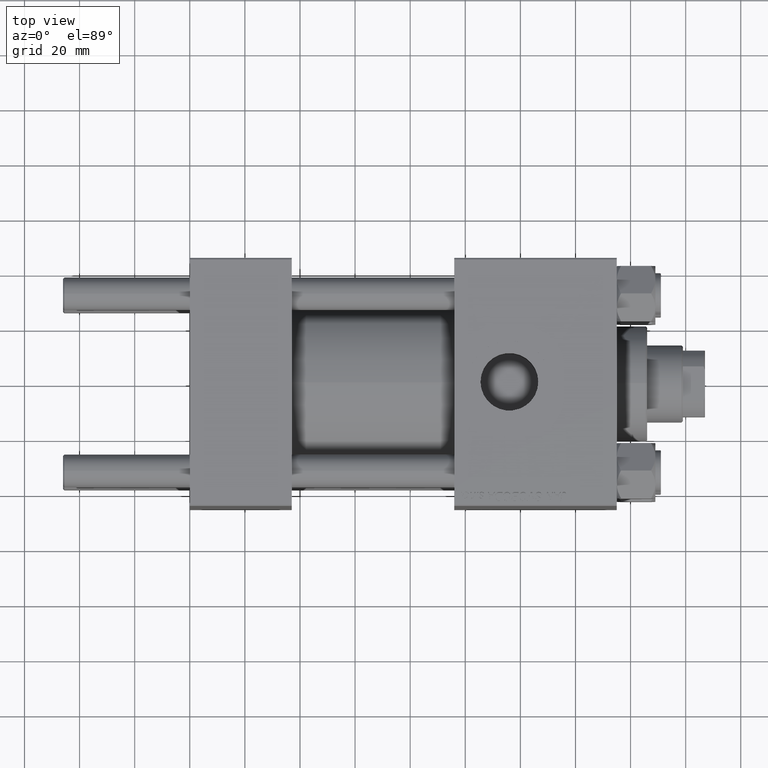
[diagram: clean part render]
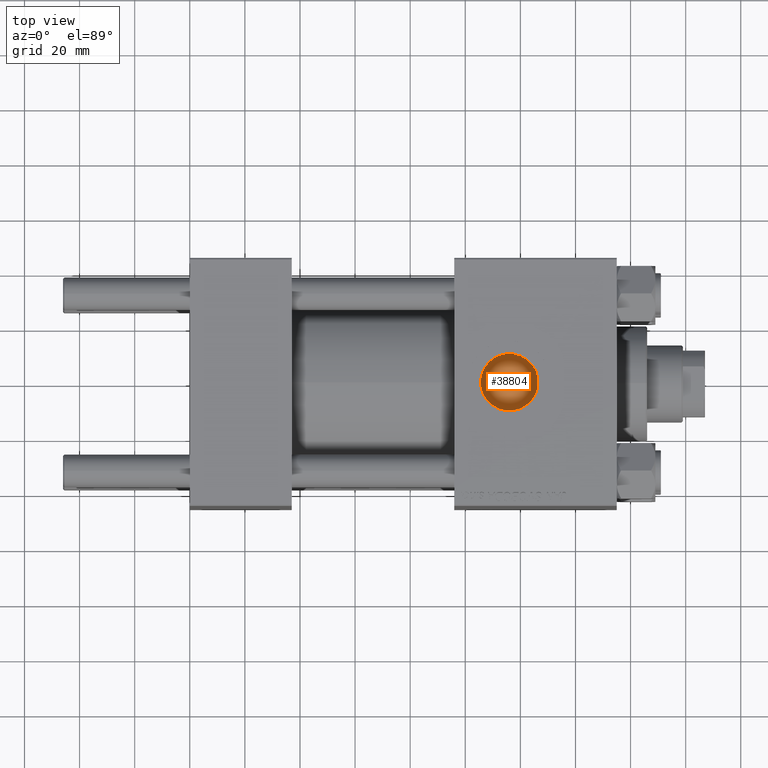
[diagram: same view with one face highlighted and labeled with its STEP entity id]
A machine part, top view. The second image highlights one B-rep face of the part: STEP entity #38804.
In plain terms, the highlighted planar face has unit normal (0, 0, 1).
Its self-contained STEP definition (entity closure, byte-faithful):
#86 = AXIS2_PLACEMENT_3D ( 'NONE', #4566, #15161, #26508 ) ;
#764 = CARTESIAN_POINT ( 'NONE',  ( 126.2999999999999972, 0.000000000000000000, 28.59999999999998721 ) ) ;
#1245 = ORIENTED_EDGE ( 'NONE', *, *, #29041, .F. ) ;
#2803 = CIRCLE ( 'NONE', #47059, 10.48000000000000398 ) ;
#4566 = CARTESIAN_POINT ( 'NONE',  ( 116.0000000000000000, -6.938893903907227589E-15, 28.59999999999998721 ) ) ;
#8361 = CARTESIAN_POINT ( 'NONE',  ( 126.2999999999999972, 1.934011375354389939, 28.59999999999998721 ) ) ;
#8387 = DIRECTION ( 'NONE',  ( 0.000000000000000000, 0.000000000000000000, 1.000000000000000000 ) ) ;
#10971 = DIRECTION ( 'NONE',  ( 0.000000000000000000, 0.000000000000000000, 1.000000000000000000 ) ) ;
#11373 = EDGE_CURVE ( 'NONE', #30995, #32601, #12941, .T. ) ;
#12941 = CIRCLE ( 'NONE', #86, 10.48000000000000398 ) ;
#15161 = DIRECTION ( 'NONE',  ( 0.000000000000000000, 0.000000000000000000, 1.000000000000000000 ) ) ;
#15295 = EDGE_CURVE ( 'NONE', #32601, #38131, #2803, .T. ) ;
#18992 = DIRECTION ( 'NONE',  ( 1.000000000000000000, 0.000000000000000000, 0.000000000000000000 ) ) ;
#19426 = ORIENTED_EDGE ( 'NONE', *, *, #11373, .T. ) ;
#20798 = VECTOR ( 'NONE', #38550, 1000.000000000000000 ) ;
#22306 = PLANE ( 'NONE',  #47579 ) ;
#26508 = DIRECTION ( 'NONE',  ( 1.000000000000000000, 0.000000000000000000, 0.000000000000000000 ) ) ;
#27080 = CARTESIAN_POINT ( 'NONE',  ( 116.0000000000000000, -6.938893903907227589E-15, 28.59999999999998721 ) ) ;
#29041 = EDGE_CURVE ( 'NONE', #30995, #38131, #42328, .T. ) ;
#30591 = CARTESIAN_POINT ( 'NONE',  ( 116.0000000000000000, -6.938893903907227589E-15, 28.59999999999998721 ) ) ;
#30619 = FACE_OUTER_BOUND ( 'NONE', #42338, .T. ) ;
#30995 = VERTEX_POINT ( 'NONE', #8361 ) ;
#32601 = VERTEX_POINT ( 'NONE', #38180 ) ;
#33900 = DIRECTION ( 'NONE',  ( 1.000000000000000000, 0.000000000000000000, -0.000000000000000000 ) ) ;
#38131 = VERTEX_POINT ( 'NONE', #41127 ) ;
#38180 = CARTESIAN_POINT ( 'NONE',  ( 105.5199999999999960, -6.938893903907227589E-15, 28.59999999999998721 ) ) ;
#38550 = DIRECTION ( 'NONE',  ( 0.000000000000000000, -1.000000000000000000, 0.000000000000000000 ) ) ;
#38804 = ADVANCED_FACE ( 'NONE', ( #30619 ), #22306, .T. ) ;
#41127 = CARTESIAN_POINT ( 'NONE',  ( 126.2999999999999972, -1.934011375354403928, 28.59999999999998721 ) ) ;
#42328 = LINE ( 'NONE', #764, #20798 ) ;
#42338 = EDGE_LOOP ( 'NONE', ( #19426, #47969, #1245 ) ) ;
#47059 = AXIS2_PLACEMENT_3D ( 'NONE', #30591, #8387, #18992 ) ;
#47579 = AXIS2_PLACEMENT_3D ( 'NONE', #27080, #10971, #33900 ) ;
#47969 = ORIENTED_EDGE ( 'NONE', *, *, #15295, .T. ) ;